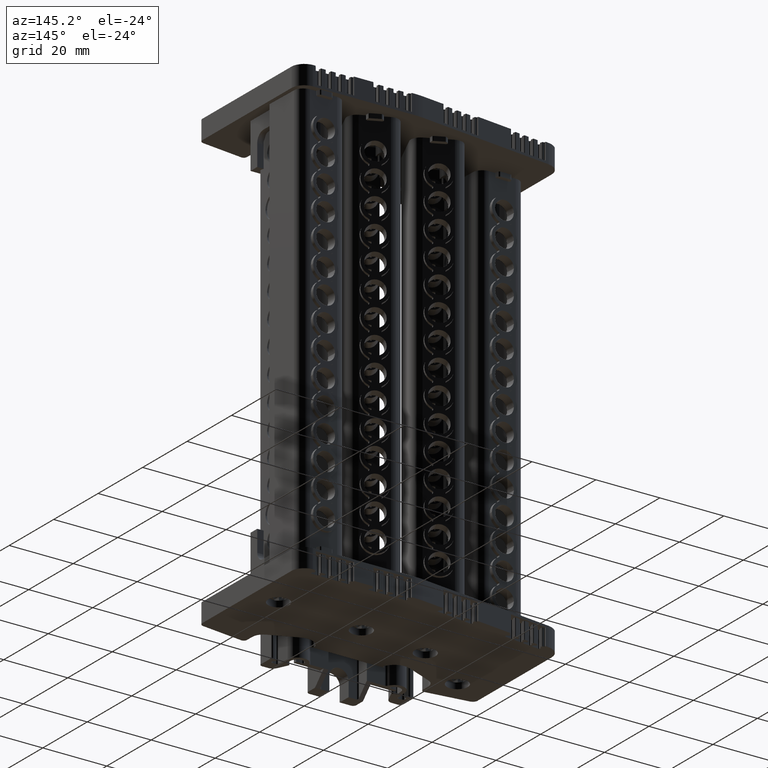
[diagram: clean part render]
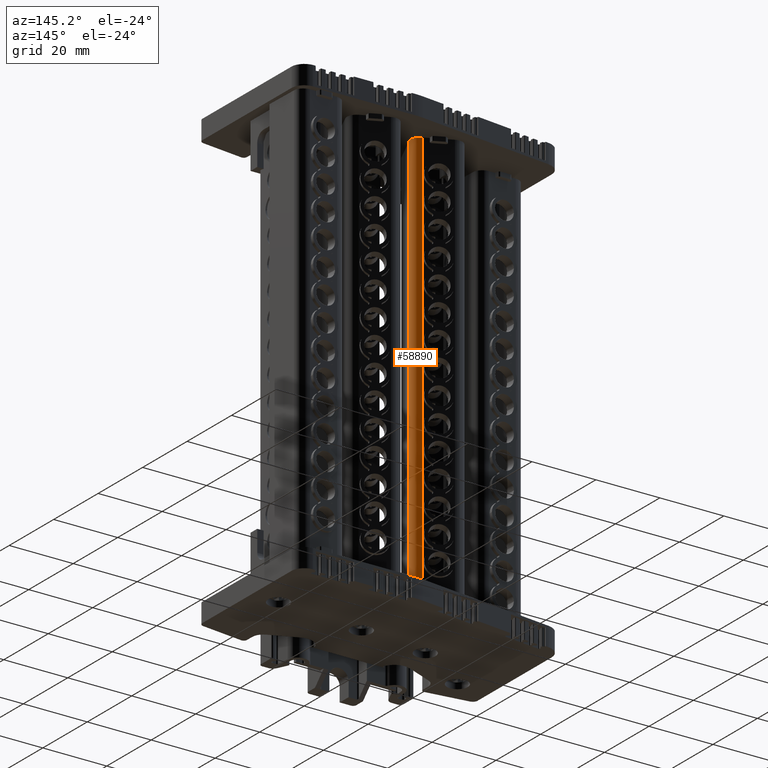
[diagram: same view with one face highlighted and labeled with its STEP entity id]
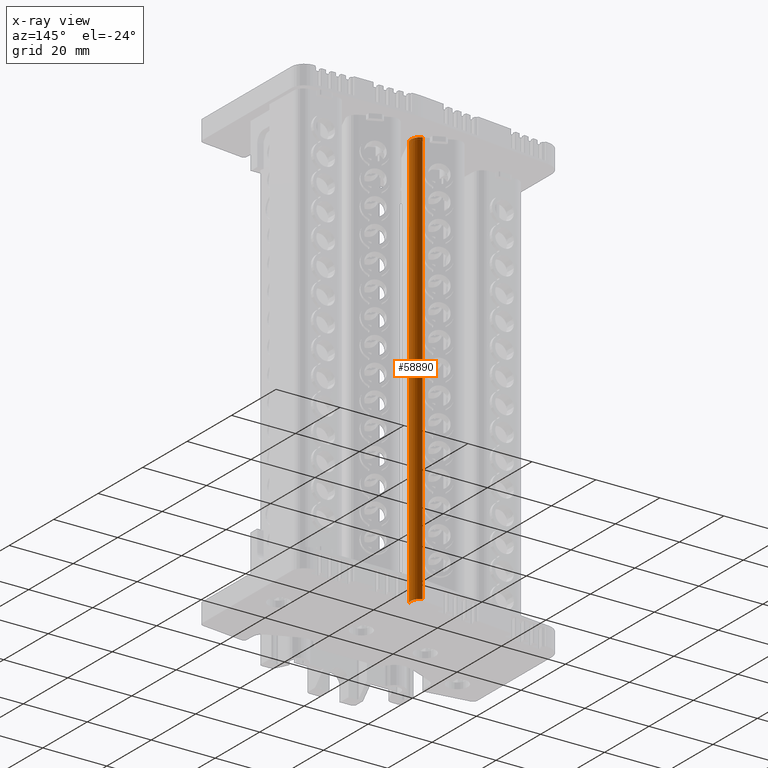
[diagram: x-ray of the same camera — body ghosted, the highlighted face saturated]
A machine part, auxiliary view. The second image highlights one B-rep face of the part: STEP entity #58890.
The next image is the same camera in x-ray: the body ghosted, the highlighted face saturated — about 0% of this face is hidden behind the body in this view.
In plain terms, the highlighted cylindrical surface (edge-blend (fillet) strip) has radius 2.9989 mm, axis along (-0, -0, -1).
Its self-contained STEP definition (entity closure, byte-faithful):
#3565 = DIRECTION ( 'NONE',  ( -2.670878784694735100E-014, -7.311159212060596000E-014, -1.000000000000000000 ) ) ;
#3594 = CARTESIAN_POINT ( 'NONE',  ( 389.4729193543528800, -82.79006502979599700, -33.40539199998790600 ) ) ;
#3599 = DIRECTION ( 'NONE',  ( 0.0000000000000000000, 1.000000000000000000, -7.404291487317050800E-014 ) ) ;
#21519 = VERTEX_POINT ( 'NONE', #73158 ) ;
#21568 = VERTEX_POINT ( 'NONE', #73192 ) ;
#24120 = AXIS2_PLACEMENT_3D ( 'NONE', #25611, #25625, #25626 ) ;
#24148 = CIRCLE ( 'NONE', #24120, 2.998863636113943800 ) ;
#24678 = AXIS2_PLACEMENT_3D ( 'NONE', #3594, #3565, #3599 ) ;
#24723 = CIRCLE ( 'NONE', #24678, 2.998863636113943800 ) ;
#25611 = CARTESIAN_POINT ( 'NONE',  ( 389.4729193543563500, -82.79006502978651800, 96.29460800001213300 ) ) ;
#25625 = DIRECTION ( 'NONE',  ( -2.670878784694735100E-014, -7.311159212060596000E-014, -1.000000000000000000 ) ) ;
#25626 = DIRECTION ( 'NONE',  ( 0.0000000000000000000, 1.000000000000000000, -7.404291487317050800E-014 ) ) ;
#32015 = EDGE_CURVE ( 'NONE', #93540, #21568, #76854, .T. ) ;
#32048 = EDGE_CURVE ( 'NONE', #21519, #94536, #76951, .T. ) ;
#33765 = EDGE_CURVE ( 'NONE', #21568, #21519, #24148, .T. ) ;
#34243 = EDGE_CURVE ( 'NONE', #93540, #94536, #24723, .T. ) ;
#56330 = CARTESIAN_POINT ( 'NONE',  ( 390.7402938914458400, -80.07217156412492900, -33.40539199998814000 ) ) ;
#56384 = CARTESIAN_POINT ( 'NONE',  ( 392.2125176072165100, -84.00981275818696800, -33.40539199998789100 ) ) ;
#58890 = ADVANCED_FACE ( 'NONE', ( #98429 ), #98433, .T. ) ;
#69902 = EDGE_LOOP ( 'NONE', ( #78732, #78565, #78562, #78629 ) ) ;
#73158 = CARTESIAN_POINT ( 'NONE',  ( 392.2125176072179300, -84.00981275818206500, 96.29460800001204700 ) ) ;
#73192 = CARTESIAN_POINT ( 'NONE',  ( 390.7402938914489100, -80.07217156411486800, 96.29460800001189100 ) ) ;
#76854 = LINE ( 'NONE', #76869, #119887 ) ;
#76869 = CARTESIAN_POINT ( 'NONE',  ( 390.7402938914460700, -80.07217156412242800, 2.304312546187078100 ) ) ;
#76871 = DIRECTION ( 'NONE',  ( 2.670878784694735100E-014, 7.311159212060596000E-014, 1.000000000000000000 ) ) ;
#76951 = LINE ( 'NONE', #76956, #119925 ) ;
#76956 = CARTESIAN_POINT ( 'NONE',  ( 392.2125176072185600, -84.00981275818233500, -10.89068745369812400 ) ) ;
#76958 = DIRECTION ( 'NONE',  ( 4.876023056388508900E-015, -2.170945334930826700E-015, -1.000000000000000000 ) ) ;
#78562 = ORIENTED_EDGE ( 'NONE', *, *, #32015, .T. ) ;
#78565 = ORIENTED_EDGE ( 'NONE', *, *, #34243, .F. ) ;
#78629 = ORIENTED_EDGE ( 'NONE', *, *, #33765, .T. ) ;
#78732 = ORIENTED_EDGE ( 'NONE', *, *, #32048, .T. ) ;
#93540 = VERTEX_POINT ( 'NONE', #56330 ) ;
#94536 = VERTEX_POINT ( 'NONE', #56384 ) ;
#98429 = FACE_OUTER_BOUND ( 'NONE', #69902, .T. ) ;
#98433 = CYLINDRICAL_SURFACE ( 'NONE', #135515, 2.998863636113943800 ) ;
#98437 = DIRECTION ( 'NONE',  ( -2.670878784694735100E-014, -7.311159212060596000E-014, -1.000000000000000000 ) ) ;
#98449 = CARTESIAN_POINT ( 'NONE',  ( 389.4729193543538500, -82.79006502979338200, 2.304312546187310400 ) ) ;
#98463 = DIRECTION ( 'NONE',  ( 0.0000000000000000000, 1.000000000000000000, -7.317522446450053500E-014 ) ) ;
#119887 = VECTOR ( 'NONE', #76871, 1000.000000000000000 ) ;
#119925 = VECTOR ( 'NONE', #76958, 1000.000000000000000 ) ;
#135515 = AXIS2_PLACEMENT_3D ( 'NONE', #98449, #98437, #98463 ) ;